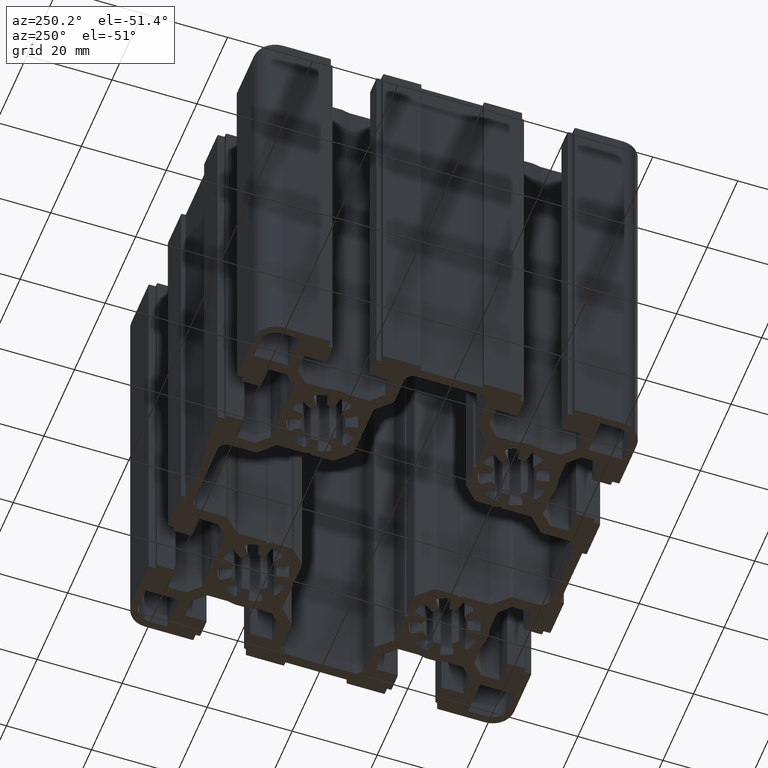
[diagram: clean part render]
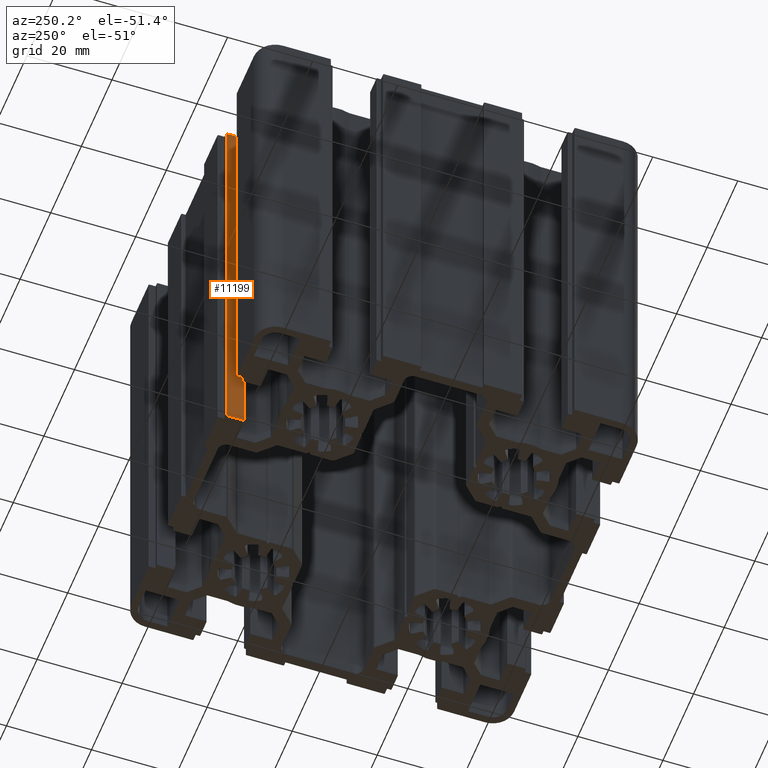
[diagram: same view with one face highlighted and labeled with its STEP entity id]
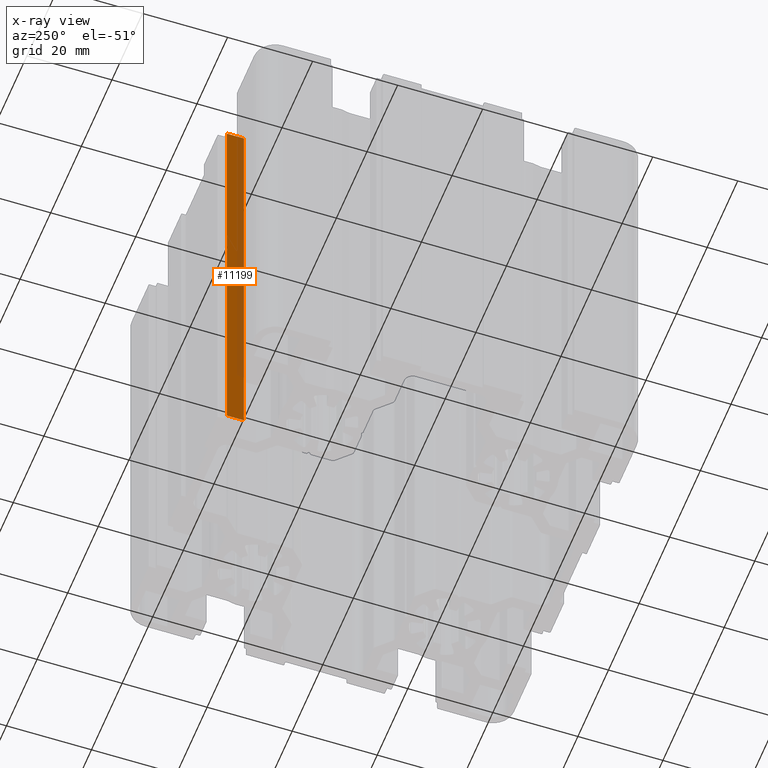
[diagram: x-ray of the same camera — body ghosted, the highlighted face saturated]
A machine part, auxiliary view. The second image highlights one B-rep face of the part: STEP entity #11199.
The next image is the same camera in x-ray: the body ghosted, the highlighted face saturated — about 35% of this face is hidden behind the body in this view.
In plain terms, the highlighted planar face has unit normal (-1, 0, 0).
Its self-contained STEP definition (entity closure, byte-faithful):
#147=PLANE('',#12135);
#605=FACE_OUTER_BOUND('',#1179,.T.);
#1179=EDGE_LOOP('',(#8353,#8354,#8355,#8356));
#1999=LINE('',#17872,#3123);
#2000=LINE('',#17875,#3124);
#2001=LINE('',#17877,#3125);
#2002=LINE('',#17878,#3126);
#3123=VECTOR('',#14479,100.);
#3124=VECTOR('',#14482,4.);
#3125=VECTOR('',#14483,4.);
#3126=VECTOR('',#14484,100.);
#4905=VERTEX_POINT('',#17868);
#4906=VERTEX_POINT('',#17870);
#4907=VERTEX_POINT('',#17874);
#4908=VERTEX_POINT('',#17876);
#6343=EDGE_CURVE('',#4906,#4905,#1999,.T.);
#6344=EDGE_CURVE('',#4905,#4907,#2000,.T.);
#6345=EDGE_CURVE('',#4908,#4906,#2001,.T.);
#6346=EDGE_CURVE('',#4908,#4907,#2002,.T.);
#8353=ORIENTED_EDGE('',*,*,#6344,.F.);
#8354=ORIENTED_EDGE('',*,*,#6343,.F.);
#8355=ORIENTED_EDGE('',*,*,#6345,.F.);
#8356=ORIENTED_EDGE('',*,*,#6346,.T.);
#11199=ADVANCED_FACE('',(#605),#147,.T.);
#12135=AXIS2_PLACEMENT_3D('',#17873,#14480,#14481);
#14479=DIRECTION('',(0.,0.,1.));
#14480=DIRECTION('center_axis',(-1.,0.,0.));
#14481=DIRECTION('ref_axis',(0.,-1.,0.));
#14482=DIRECTION('',(0.,-1.,0.));
#14483=DIRECTION('',(0.,1.,0.));
#14484=DIRECTION('',(0.,0.,1.));
#17868=CARTESIAN_POINT('',(-17.3500001037967,43.2000006524051,100.));
#17870=CARTESIAN_POINT('',(-17.3500001037967,43.2000006524051,0.));
#17872=CARTESIAN_POINT('',(-17.3500001037967,43.2000006524051,0.));
#17873=CARTESIAN_POINT('Origin',(-17.3500001037967,43.2000006524051,0.));
#17874=CARTESIAN_POINT('',(-17.3500001037967,39.2000006524051,100.));
#17875=CARTESIAN_POINT('',(-17.3500001037967,21.6000003262025,100.));
#17876=CARTESIAN_POINT('',(-17.3500001037967,39.2000006524051,0.));
#17877=CARTESIAN_POINT('',(-17.3500001037967,21.6000003262025,0.));
#17878=CARTESIAN_POINT('',(-17.3500001037967,39.2000006524051,0.));